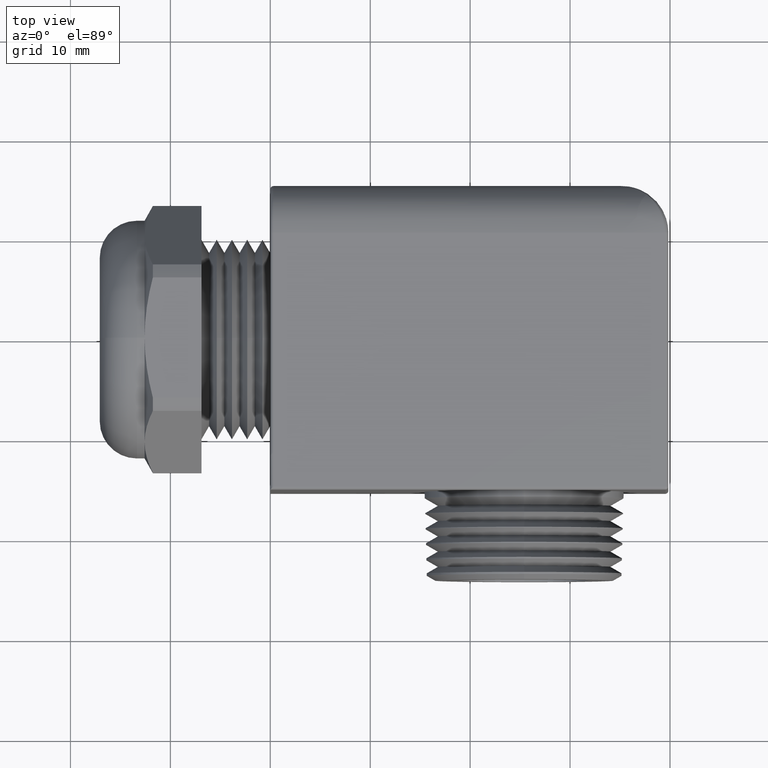
[diagram: clean part render]
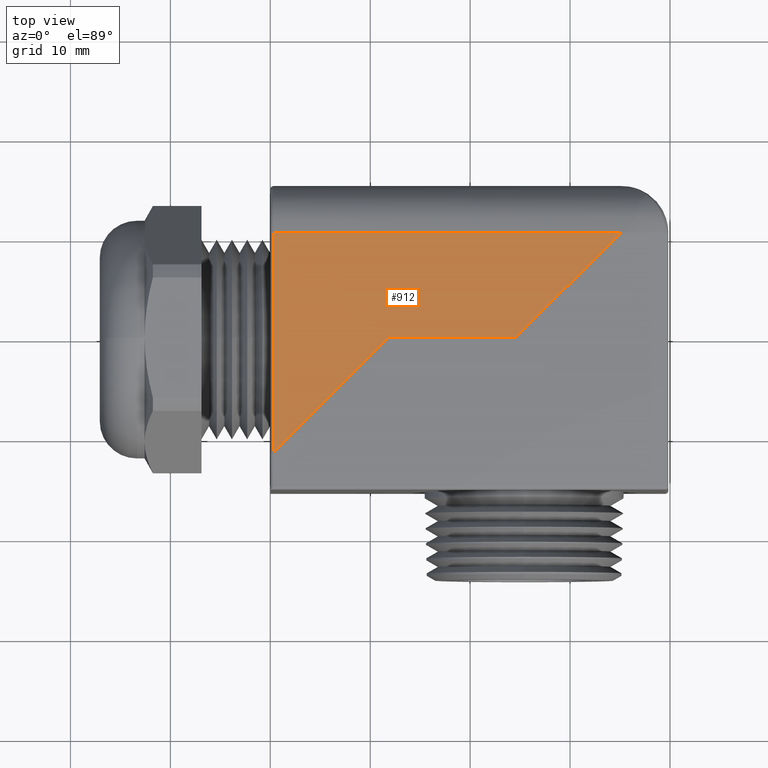
[diagram: same view with one face highlighted and labeled with its STEP entity id]
A machine part, top view. The second image highlights one B-rep face of the part: STEP entity #912.
In plain terms, the highlighted planar face has unit normal (0, 0, -1).
Its self-contained STEP definition (entity closure, byte-faithful):
#503 = VERTEX_POINT ( 'NONE', #2194 ) ;
#544 = VERTEX_POINT ( 'NONE', #2243 ) ;
#546 = EDGE_CURVE ( 'NONE', #503, #544, #2242, .T. ) ;
#912 = ADVANCED_FACE ( 'NONE', ( #2873 ), #2872, .F. ) ;
#913 = EDGE_LOOP ( 'NONE', ( #914, #915, #916, #1131, #1133 ) ) ;
#914 = ORIENTED_EDGE ( 'NONE', *, *, #1009, .T. ) ;
#915 = ORIENTED_EDGE ( 'NONE', *, *, #1066, .T. ) ;
#916 = ORIENTED_EDGE ( 'NONE', *, *, #1129, .T. ) ;
#1000 = VERTEX_POINT ( 'NONE', #3093 ) ;
#1009 = EDGE_CURVE ( 'NONE', #544, #1000, #3185, .T. ) ;
#1066 = EDGE_CURVE ( 'NONE', #1000, #1072, #3375, .T. ) ;
#1072 = VERTEX_POINT ( 'NONE', #3341 ) ;
#1129 = EDGE_CURVE ( 'NONE', #1072, #1130, #3215, .T. ) ;
#1130 = VERTEX_POINT ( 'NONE', #3309 ) ;
#1131 = ORIENTED_EDGE ( 'NONE', *, *, #1132, .T. ) ;
#1132 = EDGE_CURVE ( 'NONE', #1130, #503, #3308, .T. ) ;
#1133 = ORIENTED_EDGE ( 'NONE', *, *, #546, .T. ) ;
#2194 = CARTESIAN_POINT ( 'NONE',  ( 0.01265536723163842100, -0.4513446327683515200, 0.4699999999999999700 ) ) ;
#2239 = DIRECTION ( 'NONE',  ( 0.7071067811865512400, 0.7071067811865436900, 0.0000000000000000000 ) ) ;
#2240 = VECTOR ( 'NONE', #2239, 39.37007874015748900 ) ;
#2241 = CARTESIAN_POINT ( 'NONE',  ( 0.9668369820585435100, 0.5028369820585434400, 0.4699999999999999700 ) ) ;
#2242 = LINE ( 'NONE', #2241, #2240 ) ;
#2243 = CARTESIAN_POINT ( 'NONE',  ( 0.4639999999999946400, -6.829619984160658000E-017, 0.4699999999999999700 ) ) ;
#2868 = DIRECTION ( 'NONE',  ( -1.000000000000000000, 0.0000000000000000000, 0.0000000000000000000 ) ) ;
#2869 = DIRECTION ( 'NONE',  ( 0.0000000000000000000, 0.0000000000000000000, -1.000000000000000000 ) ) ;
#2870 = CARTESIAN_POINT ( 'NONE',  ( 1.232614984114216400, 0.2370589800028677900, 0.4699999999999999700 ) ) ;
#2871 = AXIS2_PLACEMENT_3D ( 'NONE', #2870, #2869, #2868 ) ;
#2872 = PLANE ( 'NONE',  #2871 ) ;
#2873 = FACE_OUTER_BOUND ( 'NONE', #913, .T. ) ;
#3093 = CARTESIAN_POINT ( 'NONE',  ( 0.9679999999999949800, -6.137788176939987500E-018, 0.4699999999999999700 ) ) ;
#3182 = DIRECTION ( 'NONE',  ( 1.000000000000000000, 2.319516484482451600E-017, 0.0000000000000000000 ) ) ;
#3183 = VECTOR ( 'NONE', #3182, 39.37007874015748100 ) ;
#3184 = CARTESIAN_POINT ( 'NONE',  ( 1.232614984114216400, 0.0000000000000000000, 0.4699999999999999700 ) ) ;
#3185 = LINE ( 'NONE', #3184, #3183 ) ;
#3213 = VECTOR ( 'NONE', #3310, 39.37007874015748100 ) ;
#3214 = CARTESIAN_POINT ( 'NONE',  ( 1.232614984114216400, 0.4133333333333332700, 0.4699999999999999700 ) ) ;
#3215 = LINE ( 'NONE', #3214, #3213 ) ;
#3305 = DIRECTION ( 'NONE',  ( 0.0000000000000000000, -1.000000000000000000, 0.0000000000000000000 ) ) ;
#3306 = VECTOR ( 'NONE', #3305, 39.37007874015748100 ) ;
#3307 = CARTESIAN_POINT ( 'NONE',  ( 0.01265536723163842100, 0.2370589800028677900, 0.4699999999999999700 ) ) ;
#3308 = LINE ( 'NONE', #3307, #3306 ) ;
#3309 = CARTESIAN_POINT ( 'NONE',  ( 0.01265536723163842100, 0.4133333333333332700, 0.4699999999999999700 ) ) ;
#3310 = DIRECTION ( 'NONE',  ( -1.000000000000000000, 0.0000000000000000000, 0.0000000000000000000 ) ) ;
#3341 = CARTESIAN_POINT ( 'NONE',  ( 1.381333333333332600, 0.4133333333333332700, 0.4699999999999999700 ) ) ;
#3372 = DIRECTION ( 'NONE',  ( 0.7071067811865512400, 0.7071067811865436900, 0.0000000000000000000 ) ) ;
#3373 = VECTOR ( 'NONE', #3372, 39.37007874015748900 ) ;
#3374 = CARTESIAN_POINT ( 'NONE',  ( 1.218836982058541000, 0.2508369820585433800, 0.4699999999999999700 ) ) ;
#3375 = LINE ( 'NONE', #3374, #3373 ) ;